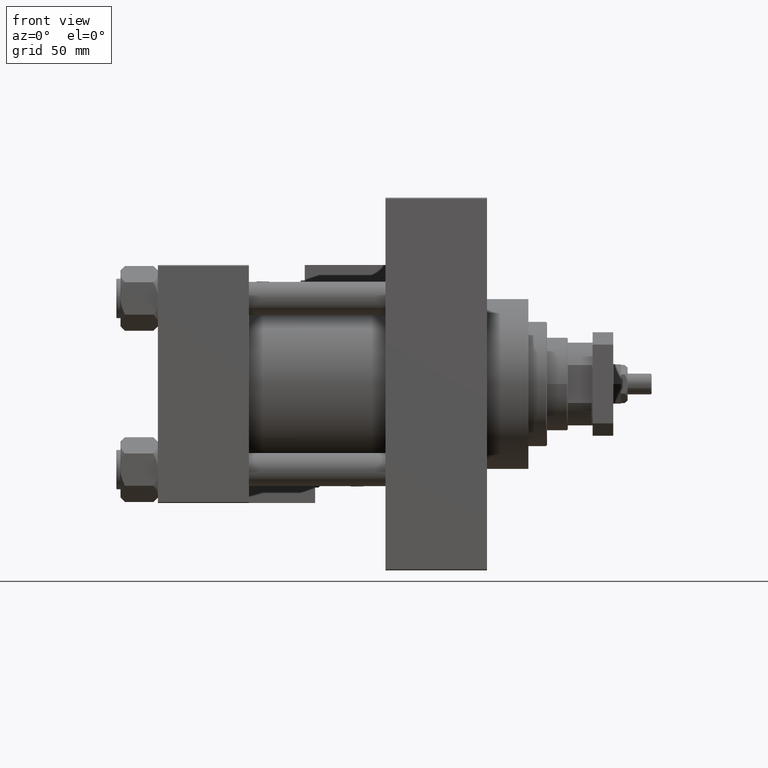
[diagram: clean part render]
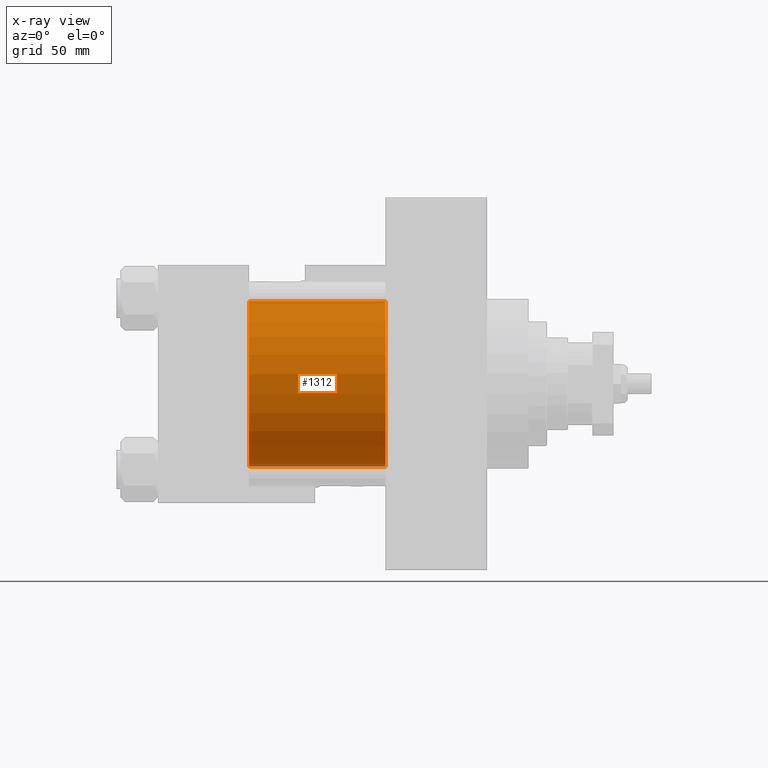
[diagram: x-ray — body ghosted, one internal face saturated and labeled with its STEP entity id]
A machine part, front view, then the same camera in x-ray: the body is ghosted and one INTERNAL B-rep face — a face not visible from any outside direction — is saturated and labeled: STEP entity #1312.
In plain terms, the highlighted cylindrical surface (partial cylindrical patch) has radius 40 mm, axis along (-1, -0, -0).
Its self-contained STEP definition (entity closure, byte-faithful):
#933 = EDGE_CURVE ( 'NONE', #12938, #8387, #38467, .T. ) ;
#1312 = ADVANCED_FACE ( 'NONE', ( #12606 ), #19944, .F. ) ;
#5901 = LINE ( 'NONE', #11210, #35751 ) ;
#8387 = VERTEX_POINT ( 'NONE', #35161 ) ;
#8429 = AXIS2_PLACEMENT_3D ( 'NONE', #33823, #50919, #47237 ) ;
#11147 = EDGE_CURVE ( 'NONE', #8387, #16200, #5901, .T. ) ;
#11210 = CARTESIAN_POINT ( 'NONE',  ( 110.0000000000000000, 2.296501982624201990E-15, -40.00000000000000000 ) ) ;
#11836 = LINE ( 'NONE', #28971, #51241 ) ;
#12215 = CARTESIAN_POINT ( 'NONE',  ( 44.00000000000000000, 2.296501982624201990E-15, -40.00000000000000000 ) ) ;
#12606 = FACE_OUTER_BOUND ( 'NONE', #53209, .T. ) ;
#12938 = VERTEX_POINT ( 'NONE', #25629 ) ;
#13704 = VERTEX_POINT ( 'NONE', #44156 ) ;
#16200 = VERTEX_POINT ( 'NONE', #12215 ) ;
#16591 = ORIENTED_EDGE ( 'NONE', *, *, #27486, .F. ) ;
#19944 = CYLINDRICAL_SURFACE ( 'NONE', #27725, 40.00000000000000000 ) ;
#22575 = ORIENTED_EDGE ( 'NONE', *, *, #933, .T. ) ;
#23069 = EDGE_CURVE ( 'NONE', #12938, #13704, #11836, .T. ) ;
#24669 = DIRECTION ( 'NONE',  ( 1.000000000000000000, 0.000000000000000000, 0.000000000000000000 ) ) ;
#25451 = CIRCLE ( 'NONE', #8429, 40.00000000000000000 ) ;
#25629 = CARTESIAN_POINT ( 'NONE',  ( 110.0000000000000000, -2.602085213965210642E-15, 40.00000000000000000 ) ) ;
#27486 = EDGE_CURVE ( 'NONE', #13704, #16200, #25451, .T. ) ;
#27725 = AXIS2_PLACEMENT_3D ( 'NONE', #49948, #43725, #42626 ) ;
#28343 = CARTESIAN_POINT ( 'NONE',  ( 110.0000000000000000, -2.602085213965210642E-15, 0.000000000000000000 ) ) ;
#28971 = CARTESIAN_POINT ( 'NONE',  ( 110.0000000000000000, -2.602085213965210642E-15, 40.00000000000000000 ) ) ;
#31309 = AXIS2_PLACEMENT_3D ( 'NONE', #28343, #24669, #50199 ) ;
#33823 = CARTESIAN_POINT ( 'NONE',  ( 44.00000000000000000, -2.602085213965210642E-15, 0.000000000000000000 ) ) ;
#34689 = ORIENTED_EDGE ( 'NONE', *, *, #23069, .F. ) ;
#35161 = CARTESIAN_POINT ( 'NONE',  ( 110.0000000000000000, 2.296501982624201990E-15, -40.00000000000000000 ) ) ;
#35751 = VECTOR ( 'NONE', #40131, 1000.000000000000000 ) ;
#38467 = CIRCLE ( 'NONE', #31309, 40.00000000000000000 ) ;
#40131 = DIRECTION ( 'NONE',  ( -1.000000000000000000, -0.000000000000000000, -0.000000000000000000 ) ) ;
#42626 = DIRECTION ( 'NONE',  ( 0.000000000000000000, 0.000000000000000000, 1.000000000000000000 ) ) ;
#43725 = DIRECTION ( 'NONE',  ( -1.000000000000000000, -0.000000000000000000, -0.000000000000000000 ) ) ;
#44156 = CARTESIAN_POINT ( 'NONE',  ( 44.00000000000000000, -2.602085213965210642E-15, 40.00000000000000000 ) ) ;
#45495 = ORIENTED_EDGE ( 'NONE', *, *, #11147, .T. ) ;
#47237 = DIRECTION ( 'NONE',  ( 0.000000000000000000, 0.000000000000000000, -1.000000000000000000 ) ) ;
#49948 = CARTESIAN_POINT ( 'NONE',  ( 110.0000000000000000, -2.602085213965210642E-15, 0.000000000000000000 ) ) ;
#50199 = DIRECTION ( 'NONE',  ( 0.000000000000000000, 0.000000000000000000, -1.000000000000000000 ) ) ;
#50919 = DIRECTION ( 'NONE',  ( 1.000000000000000000, 0.000000000000000000, 0.000000000000000000 ) ) ;
#51241 = VECTOR ( 'NONE', #55316, 1000.000000000000000 ) ;
#53209 = EDGE_LOOP ( 'NONE', ( #22575, #45495, #16591, #34689 ) ) ;
#55316 = DIRECTION ( 'NONE',  ( -1.000000000000000000, -0.000000000000000000, -0.000000000000000000 ) ) ;